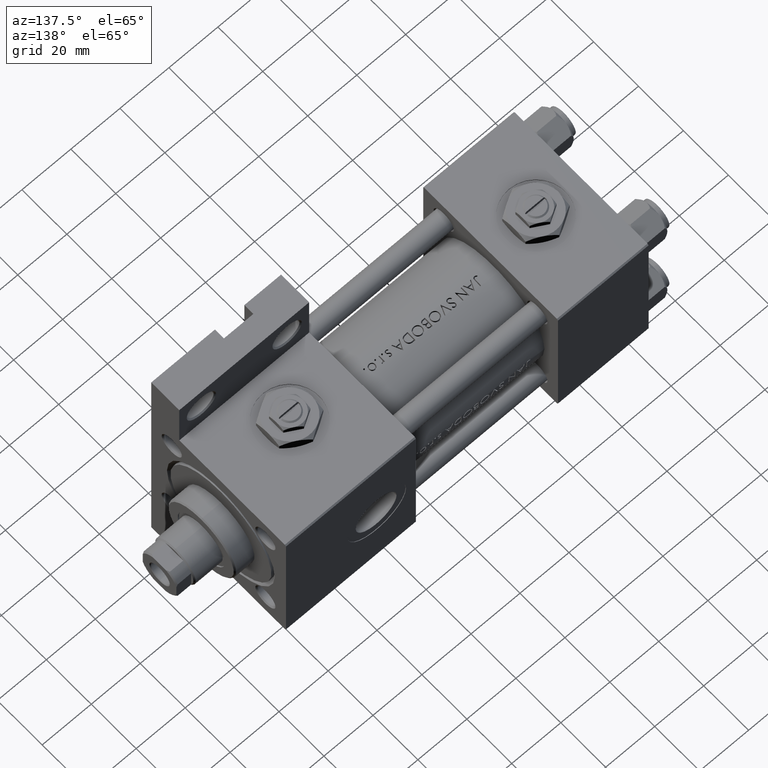
[diagram: clean part render]
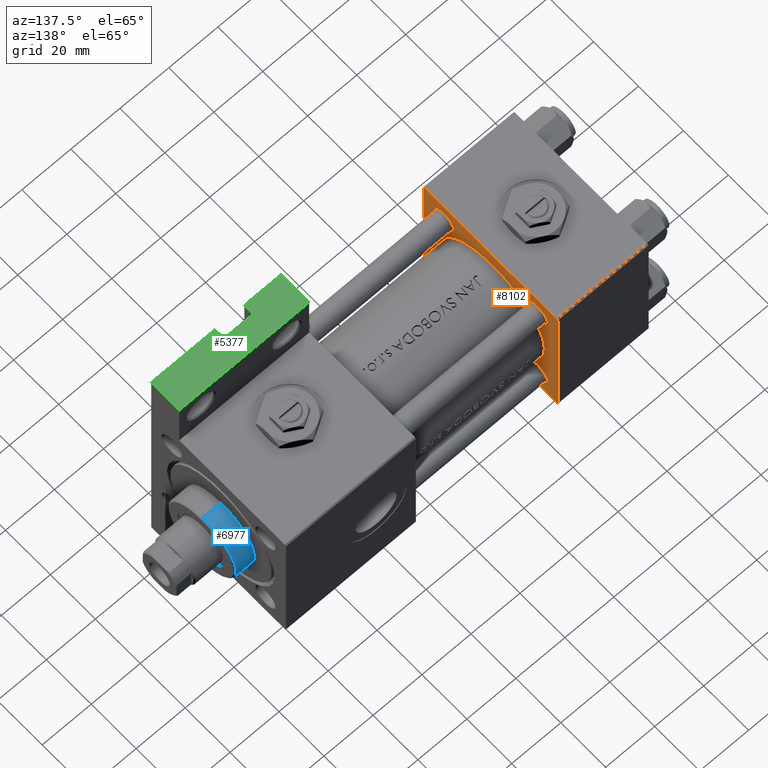
[diagram: same view with three faces highlighted in distinct colors, each labeled with its STEP entity id]
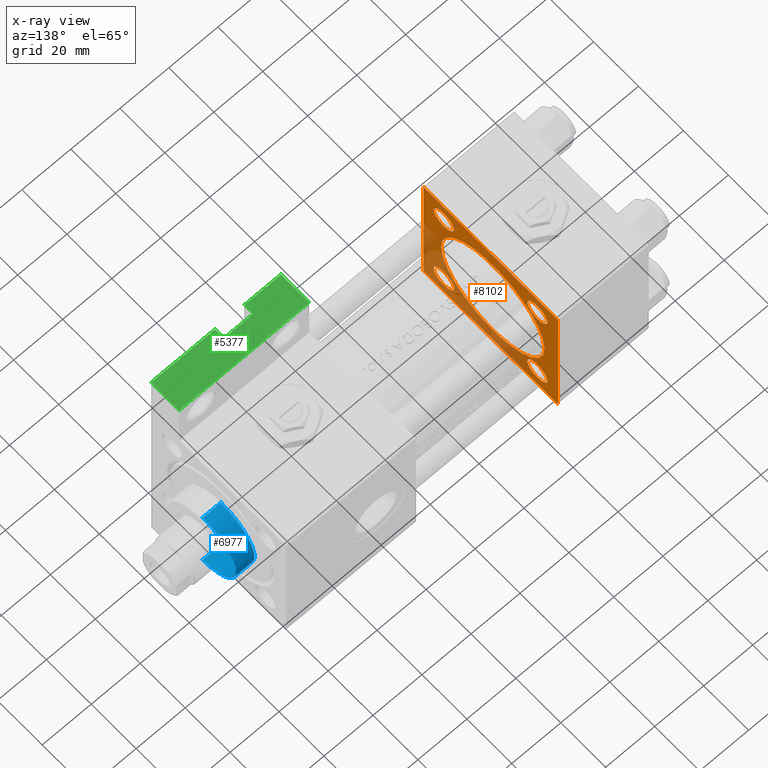
[diagram: x-ray of the same camera — body ghosted, the three highlighted faces saturated]
A machine part, auxiliary view with three faces highlighted in distinct colors.
The next image is the same camera in x-ray (body ghosted, the three faces saturated) — at least one of them is partly hidden behind the body in this view.
Their STEP definitions:

[orange] entity #8102 — the highlighted planar face has unit normal (-1, 0, -0).
#1 = ORIENTED_EDGE ( 'NONE', *, *, #6083, .F. ) ;
#52 = ORIENTED_EDGE ( 'NONE', *, *, #32908, .T. ) ;
#454 = FACE_BOUND ( 'NONE', #29024, .T. ) ;
#835 = LINE ( 'NONE', #16457, #50430 ) ;
#2034 = DIRECTION ( 'NONE',  ( 0.000000000000000000, 0.000000000000000000, 1.000000000000000000 ) ) ;
#2224 = EDGE_CURVE ( 'NONE', #46871, #26249, #44902, .T. ) ;
#2360 = CARTESIAN_POINT ( 'NONE',  ( 37.00000000000000000, 29.99999999999999289, -29.50000000000000000 ) ) ;
#3117 = LINE ( 'NONE', #2360, #45963 ) ;
#3244 = CARTESIAN_POINT ( 'NONE',  ( 37.00000000000000000, 20.84999999999999787, -20.85000000000000142 ) ) ;
#3251 = DIRECTION ( 'NONE',  ( 0.000000000000000000, 0.000000000000000000, -1.000000000000000000 ) ) ;
#3546 = LINE ( 'NONE', #26640, #13940 ) ;
#3583 = LINE ( 'NONE', #26169, #19038 ) ;
#3779 = VERTEX_POINT ( 'NONE', #3946 ) ;
#3946 = CARTESIAN_POINT ( 'NONE',  ( 37.00000000000000000, 29.49999999999997868, -30.00000000000000000 ) ) ;
#4311 = DIRECTION ( 'NONE',  ( -1.000000000000000000, 0.000000000000000000, -0.000000000000000000 ) ) ;
#4391 = AXIS2_PLACEMENT_3D ( 'NONE', #44668, #9231, #16155 ) ;
#4850 = VERTEX_POINT ( 'NONE', #36782 ) ;
#6083 = EDGE_CURVE ( 'NONE', #48280, #39287, #22076, .T. ) ;
#6138 = ORIENTED_EDGE ( 'NONE', *, *, #9735, .T. ) ;
#6872 = EDGE_CURVE ( 'NONE', #39287, #48280, #43449, .T. ) ;
#7071 = CARTESIAN_POINT ( 'NONE',  ( 37.00000000000000000, -20.84999999999999076, -20.85000000000000497 ) ) ;
#7085 = CARTESIAN_POINT ( 'NONE',  ( 37.00000000000000000, -30.00000000000000000, 29.49999999999999289 ) ) ;
#7421 = CARTESIAN_POINT ( 'NONE',  ( 37.00000000000000000, -20.84999999999999076, -25.34999999999999432 ) ) ;
#7938 = ORIENTED_EDGE ( 'NONE', *, *, #36177, .T. ) ;
#8102 = ADVANCED_FACE ( 'NONE', ( #454, #31479, #27871, #44336, #47662, #9155 ), #12473, .F. ) ;
#8237 = ORIENTED_EDGE ( 'NONE', *, *, #29747, .T. ) ;
#8316 = VERTEX_POINT ( 'NONE', #7085 ) ;
#8364 = VERTEX_POINT ( 'NONE', #47872 ) ;
#8413 = EDGE_CURVE ( 'NONE', #33873, #14173, #14643, .T. ) ;
#8478 = EDGE_CURVE ( 'NONE', #3779, #40508, #3117, .T. ) ;
#8730 = CARTESIAN_POINT ( 'NONE',  ( 37.00000000000000000, 20.84999999999999787, -20.85000000000000142 ) ) ;
#8745 = EDGE_CURVE ( 'NONE', #17072, #13850, #3546, .T. ) ;
#9155 = FACE_OUTER_BOUND ( 'NONE', #40063, .T. ) ;
#9231 = DIRECTION ( 'NONE',  ( -1.000000000000000000, 0.000000000000000000, -0.000000000000000000 ) ) ;
#9564 = CARTESIAN_POINT ( 'NONE',  ( 37.00000000000000000, -29.49999999999998579, 29.99999999999999289 ) ) ;
#9735 = EDGE_CURVE ( 'NONE', #4850, #8364, #20526, .T. ) ;
#10169 = DIRECTION ( 'NONE',  ( 0.000000000000000000, 0.000000000000000000, 1.000000000000000000 ) ) ;
#10435 = EDGE_LOOP ( 'NONE', ( #21502, #1 ) ) ;
#10539 = CARTESIAN_POINT ( 'NONE',  ( 37.00000000000000000, -29.50000000000001066, -30.00000000000000711 ) ) ;
#10965 = ORIENTED_EDGE ( 'NONE', *, *, #38638, .T. ) ;
#11073 = EDGE_CURVE ( 'NONE', #32852, #26844, #28823, .T. ) ;
#12041 = EDGE_CURVE ( 'NONE', #13850, #35824, #3583, .T. ) ;
#12473 = PLANE ( 'NONE',  #22145 ) ;
#12727 = CARTESIAN_POINT ( 'NONE',  ( 37.00000000000000000, 0.000000000000000000, 0.000000000000000000 ) ) ;
#13356 = AXIS2_PLACEMENT_3D ( 'NONE', #8730, #48794, #40306 ) ;
#13850 = VERTEX_POINT ( 'NONE', #49885 ) ;
#13907 = ORIENTED_EDGE ( 'NONE', *, *, #40550, .F. ) ;
#13940 = VECTOR ( 'NONE', #35090, 1000.000000000000114 ) ;
#14173 = VERTEX_POINT ( 'NONE', #30289 ) ;
#14222 = DIRECTION ( 'NONE',  ( -1.000000000000000000, 0.000000000000000000, -0.000000000000000000 ) ) ;
#14643 = LINE ( 'NONE', #10539, #48415 ) ;
#15423 = ORIENTED_EDGE ( 'NONE', *, *, #2224, .T. ) ;
#15988 = CARTESIAN_POINT ( 'NONE',  ( 37.00000000000000000, -20.84999999999999076, -16.35000000000001208 ) ) ;
#16155 = DIRECTION ( 'NONE',  ( 0.000000000000000000, 0.000000000000000000, 1.000000000000000000 ) ) ;
#16355 = AXIS2_PLACEMENT_3D ( 'NONE', #47214, #30783, #38999 ) ;
#16457 = CARTESIAN_POINT ( 'NONE',  ( 37.00000000000000000, 29.99999999999999289, 30.00000000000000000 ) ) ;
#17045 = DIRECTION ( 'NONE',  ( 0.000000000000000000, 0.7071067811865474617, -0.7071067811865474617 ) ) ;
#17072 = VERTEX_POINT ( 'NONE', #47871 ) ;
#17361 = CIRCLE ( 'NONE', #21461, 4.499999999999990230 ) ;
#18162 = DIRECTION ( 'NONE',  ( 1.000000000000000000, -0.000000000000000000, 0.000000000000000000 ) ) ;
#18209 = ORIENTED_EDGE ( 'NONE', *, *, #11073, .T. ) ;
#18391 = ORIENTED_EDGE ( 'NONE', *, *, #38756, .F. ) ;
#18886 = EDGE_CURVE ( 'NONE', #35712, #34332, #26515, .T. ) ;
#18921 = AXIS2_PLACEMENT_3D ( 'NONE', #3244, #49462, #10169 ) ;
#19038 = VECTOR ( 'NONE', #27168, 1000.000000000000000 ) ;
#19755 = EDGE_LOOP ( 'NONE', ( #18209, #8237 ) ) ;
#20455 = AXIS2_PLACEMENT_3D ( 'NONE', #25114, #18162, #2034 ) ;
#20526 = CIRCLE ( 'NONE', #18921, 4.499999999999990230 ) ;
#20778 = CARTESIAN_POINT ( 'NONE',  ( 37.00000000000000000, -1.224646799147354686E-16, 24.00000000000000000 ) ) ;
#21461 = AXIS2_PLACEMENT_3D ( 'NONE', #50769, #39713, #35337 ) ;
#21502 = ORIENTED_EDGE ( 'NONE', *, *, #6872, .F. ) ;
#22076 = CIRCLE ( 'NONE', #16355, 23.00000000000000000 ) ;
#22145 = AXIS2_PLACEMENT_3D ( 'NONE', #12727, #24808, #47160 ) ;
#22484 = CARTESIAN_POINT ( 'NONE',  ( 37.00000000000000000, 20.84999999999999787, 16.35000000000001208 ) ) ;
#23127 = EDGE_CURVE ( 'NONE', #35824, #8316, #41197, .T. ) ;
#23230 = EDGE_CURVE ( 'NONE', #26249, #46871, #23698, .T. ) ;
#23698 = CIRCLE ( 'NONE', #43355, 4.499999999999990230 ) ;
#24050 = DIRECTION ( 'NONE',  ( -0.000000000000000000, -0.7071067811865474617, -0.7071067811865474617 ) ) ;
#24259 = EDGE_LOOP ( 'NONE', ( #7938, #6138 ) ) ;
#24615 = ORIENTED_EDGE ( 'NONE', *, *, #23127, .T. ) ;
#24709 = CARTESIAN_POINT ( 'NONE',  ( 37.00000000000000000, 2.694222958124176415E-15, -22.00000000000000000 ) ) ;
#24808 = DIRECTION ( 'NONE',  ( -1.000000000000000000, 0.000000000000000000, -0.000000000000000000 ) ) ;
#25114 = CARTESIAN_POINT ( 'NONE',  ( 37.00000000000000000, -1.224646799147354686E-16, 1.000000000000000888 ) ) ;
#25514 = DIRECTION ( 'NONE',  ( 0.000000000000000000, -1.000000000000000000, -1.156482317317871725E-16 ) ) ;
#25621 = CARTESIAN_POINT ( 'NONE',  ( 37.00000000000000000, 29.99999999999999289, -29.50000000000000000 ) ) ;
#25677 = AXIS2_PLACEMENT_3D ( 'NONE', #7071, #29912, #34014 ) ;
#25800 = EDGE_LOOP ( 'NONE', ( #15423, #47014 ) ) ;
#26169 = CARTESIAN_POINT ( 'NONE',  ( 37.00000000000000000, 29.99999999999999289, 30.00000000000000000 ) ) ;
#26249 = VERTEX_POINT ( 'NONE', #34808 ) ;
#26364 = AXIS2_PLACEMENT_3D ( 'NONE', #34169, #29562, #49853 ) ;
#26515 = CIRCLE ( 'NONE', #4391, 4.499999999999990230 ) ;
#26640 = CARTESIAN_POINT ( 'NONE',  ( 37.00000000000000000, 29.49999999999999289, 30.00000000000000000 ) ) ;
#26784 = CARTESIAN_POINT ( 'NONE',  ( 37.00000000000000000, 20.84999999999999787, 20.85000000000000142 ) ) ;
#26844 = VERTEX_POINT ( 'NONE', #41346 ) ;
#27168 = DIRECTION ( 'NONE',  ( 0.000000000000000000, -1.000000000000000000, -1.156482317317871725E-16 ) ) ;
#27871 = FACE_BOUND ( 'NONE', #19755, .T. ) ;
#28498 = ORIENTED_EDGE ( 'NONE', *, *, #8745, .T. ) ;
#28703 = ORIENTED_EDGE ( 'NONE', *, *, #18886, .T. ) ;
#28823 = CIRCLE ( 'NONE', #26364, 4.499999999999990230 ) ;
#29024 = EDGE_LOOP ( 'NONE', ( #52, #28703 ) ) ;
#29562 = DIRECTION ( 'NONE',  ( -1.000000000000000000, 0.000000000000000000, -0.000000000000000000 ) ) ;
#29652 = CARTESIAN_POINT ( 'NONE',  ( 37.00000000000000000, -20.84999999999999076, 16.35000000000001208 ) ) ;
#29747 = EDGE_CURVE ( 'NONE', #26844, #32852, #17361, .T. ) ;
#29912 = DIRECTION ( 'NONE',  ( -1.000000000000000000, 0.000000000000000000, -0.000000000000000000 ) ) ;
#30289 = CARTESIAN_POINT ( 'NONE',  ( 37.00000000000000000, -29.50000000000000000, -30.00000000000000711 ) ) ;
#30783 = DIRECTION ( 'NONE',  ( 1.000000000000000000, -0.000000000000000000, 0.000000000000000000 ) ) ;
#31479 = FACE_BOUND ( 'NONE', #24259, .T. ) ;
#31501 = CARTESIAN_POINT ( 'NONE',  ( 37.00000000000000000, 20.84999999999999787, 20.85000000000000142 ) ) ;
#32852 = VERTEX_POINT ( 'NONE', #29652 ) ;
#32908 = EDGE_CURVE ( 'NONE', #34332, #35712, #33047, .T. ) ;
#33047 = CIRCLE ( 'NONE', #25677, 4.499999999999990230 ) ;
#33873 = VERTEX_POINT ( 'NONE', #45849 ) ;
#34014 = DIRECTION ( 'NONE',  ( 0.000000000000000000, 0.000000000000000000, 1.000000000000000000 ) ) ;
#34169 = CARTESIAN_POINT ( 'NONE',  ( 37.00000000000000000, -20.84999999999999076, 20.85000000000000497 ) ) ;
#34182 = ORIENTED_EDGE ( 'NONE', *, *, #8413, .T. ) ;
#34332 = VERTEX_POINT ( 'NONE', #7421 ) ;
#34724 = VECTOR ( 'NONE', #3251, 1000.000000000000000 ) ;
#34808 = CARTESIAN_POINT ( 'NONE',  ( 37.00000000000000000, 20.84999999999999787, 25.34999999999999076 ) ) ;
#35090 = DIRECTION ( 'NONE',  ( 0.000000000000000000, -0.7071067811865474617, 0.7071067811865474617 ) ) ;
#35103 = DIRECTION ( 'NONE',  ( 0.000000000000000000, 0.000000000000000000, 1.000000000000000000 ) ) ;
#35337 = DIRECTION ( 'NONE',  ( 0.000000000000000000, 0.000000000000000000, 1.000000000000000000 ) ) ;
#35571 = VECTOR ( 'NONE', #25514, 1000.000000000000000 ) ;
#35712 = VERTEX_POINT ( 'NONE', #15988 ) ;
#35824 = VERTEX_POINT ( 'NONE', #9564 ) ;
#36177 = EDGE_CURVE ( 'NONE', #8364, #4850, #41235, .T. ) ;
#36782 = CARTESIAN_POINT ( 'NONE',  ( 37.00000000000000000, 20.84999999999999787, -16.35000000000001208 ) ) ;
#38014 = DIRECTION ( 'NONE',  ( -0.000000000000000000, 0.7071067811865574537, 0.7071067811865376918 ) ) ;
#38347 = DIRECTION ( 'NONE',  ( 0.000000000000000000, 0.000000000000000000, 1.000000000000000000 ) ) ;
#38638 = EDGE_CURVE ( 'NONE', #8316, #33873, #42511, .T. ) ;
#38756 = EDGE_CURVE ( 'NONE', #3779, #14173, #47619, .T. ) ;
#38999 = DIRECTION ( 'NONE',  ( 0.000000000000000000, 0.000000000000000000, 1.000000000000000000 ) ) ;
#39287 = VERTEX_POINT ( 'NONE', #20778 ) ;
#39713 = DIRECTION ( 'NONE',  ( -1.000000000000000000, 0.000000000000000000, -0.000000000000000000 ) ) ;
#40063 = EDGE_LOOP ( 'NONE', ( #18391, #47902, #13907, #28498, #50762, #24615, #10965, #34182 ) ) ;
#40306 = DIRECTION ( 'NONE',  ( 0.000000000000000000, 0.000000000000000000, 1.000000000000000000 ) ) ;
#40508 = VERTEX_POINT ( 'NONE', #25621 ) ;
#40550 = EDGE_CURVE ( 'NONE', #17072, #40508, #835, .T. ) ;
#41197 = LINE ( 'NONE', #49156, #50760 ) ;
#41235 = CIRCLE ( 'NONE', #13356, 4.499999999999990230 ) ;
#41346 = CARTESIAN_POINT ( 'NONE',  ( 37.00000000000000000, -20.84999999999999076, 25.34999999999999432 ) ) ;
#42511 = LINE ( 'NONE', #45360, #34724 ) ;
#43355 = AXIS2_PLACEMENT_3D ( 'NONE', #26784, #14222, #38347 ) ;
#43449 = CIRCLE ( 'NONE', #20455, 23.00000000000000000 ) ;
#44336 = FACE_BOUND ( 'NONE', #25800, .T. ) ;
#44550 = CARTESIAN_POINT ( 'NONE',  ( 37.00000000000000000, 29.99999999999999289, -30.00000000000000000 ) ) ;
#44668 = CARTESIAN_POINT ( 'NONE',  ( 37.00000000000000000, -20.84999999999999076, -20.85000000000000497 ) ) ;
#44902 = CIRCLE ( 'NONE', #45748, 4.499999999999990230 ) ;
#45360 = CARTESIAN_POINT ( 'NONE',  ( 37.00000000000000000, -30.00000000000000000, 29.99999999999999289 ) ) ;
#45748 = AXIS2_PLACEMENT_3D ( 'NONE', #31501, #4311, #35103 ) ;
#45849 = CARTESIAN_POINT ( 'NONE',  ( 37.00000000000000000, -30.00000000000000000, -29.50000000000001776 ) ) ;
#45963 = VECTOR ( 'NONE', #38014, 999.9999999999998863 ) ;
#46871 = VERTEX_POINT ( 'NONE', #22484 ) ;
#47014 = ORIENTED_EDGE ( 'NONE', *, *, #23230, .T. ) ;
#47160 = DIRECTION ( 'NONE',  ( -0.000000000000000000, 0.000000000000000000, 1.000000000000000000 ) ) ;
#47214 = CARTESIAN_POINT ( 'NONE',  ( 37.00000000000000000, -1.224646799147354686E-16, 1.000000000000000888 ) ) ;
#47293 = DIRECTION ( 'NONE',  ( 0.000000000000000000, 0.000000000000000000, -1.000000000000000000 ) ) ;
#47619 = LINE ( 'NONE', #44550, #35571 ) ;
#47662 = FACE_BOUND ( 'NONE', #10435, .T. ) ;
#47871 = CARTESIAN_POINT ( 'NONE',  ( 37.00000000000000000, 29.99999999999999289, 29.50000000000000000 ) ) ;
#47872 = CARTESIAN_POINT ( 'NONE',  ( 37.00000000000000000, 20.84999999999999787, -25.34999999999999076 ) ) ;
#47902 = ORIENTED_EDGE ( 'NONE', *, *, #8478, .T. ) ;
#48280 = VERTEX_POINT ( 'NONE', #24709 ) ;
#48415 = VECTOR ( 'NONE', #17045, 1000.000000000000114 ) ;
#48794 = DIRECTION ( 'NONE',  ( -1.000000000000000000, 0.000000000000000000, -0.000000000000000000 ) ) ;
#49156 = CARTESIAN_POINT ( 'NONE',  ( 37.00000000000000000, -30.00000000000000000, 29.49999999999999289 ) ) ;
#49462 = DIRECTION ( 'NONE',  ( -1.000000000000000000, 0.000000000000000000, -0.000000000000000000 ) ) ;
#49853 = DIRECTION ( 'NONE',  ( 0.000000000000000000, 0.000000000000000000, 1.000000000000000000 ) ) ;
#49885 = CARTESIAN_POINT ( 'NONE',  ( 37.00000000000000000, 29.49999999999999289, 30.00000000000000000 ) ) ;
#50430 = VECTOR ( 'NONE', #47293, 1000.000000000000000 ) ;
#50760 = VECTOR ( 'NONE', #24050, 1000.000000000000114 ) ;
#50762 = ORIENTED_EDGE ( 'NONE', *, *, #12041, .T. ) ;
#50769 = CARTESIAN_POINT ( 'NONE',  ( 37.00000000000000000, -20.84999999999999076, 20.85000000000000497 ) ) ;

[blue] entity #6977 — the highlighted cylindrical surface (partial cylindrical patch) has radius 15 mm, axis along (-1, 0, 0).
#534 = EDGE_CURVE ( 'NONE', #37278, #1949, #2846, .T. ) ;
#891 = CARTESIAN_POINT ( 'NONE',  ( 0.000000000000000000, 0.000000000000000000, 36.69999999999999574 ) ) ;
#1624 = ORIENTED_EDGE ( 'NONE', *, *, #40869, .F. ) ;
#1949 = VERTEX_POINT ( 'NONE', #3873 ) ;
#2484 = DIRECTION ( 'NONE',  ( -0.000000000000000000, -0.000000000000000000, -1.000000000000000000 ) ) ;
#2846 = LINE ( 'NONE', #10770, #50618 ) ;
#3639 = CARTESIAN_POINT ( 'NONE',  ( 0.000000000000000000, 0.000000000000000000, 28.69999999999999929 ) ) ;
#3873 = CARTESIAN_POINT ( 'NONE',  ( -15.00000000000000000, 0.000000000000000000, 28.69999999999999929 ) ) ;
#4100 = EDGE_CURVE ( 'NONE', #1949, #12828, #41709, .T. ) ;
#6977 = ADVANCED_FACE ( 'NONE', ( #27810 ), #28074, .T. ) ;
#7260 = AXIS2_PLACEMENT_3D ( 'NONE', #3639, #15669, #38542 ) ;
#10770 = CARTESIAN_POINT ( 'NONE',  ( -15.00000000000000000, 0.000000000000000000, 36.69999999999999574 ) ) ;
#12828 = VERTEX_POINT ( 'NONE', #40903 ) ;
#14738 = EDGE_CURVE ( 'NONE', #36202, #37278, #41955, .T. ) ;
#14871 = DIRECTION ( 'NONE',  ( 1.000000000000000000, 0.000000000000000000, 0.000000000000000000 ) ) ;
#15613 = ORIENTED_EDGE ( 'NONE', *, *, #14738, .T. ) ;
#15669 = DIRECTION ( 'NONE',  ( 0.000000000000000000, 0.000000000000000000, 1.000000000000000000 ) ) ;
#16394 = AXIS2_PLACEMENT_3D ( 'NONE', #891, #16516, #24482 ) ;
#16516 = DIRECTION ( 'NONE',  ( -0.000000000000000000, -0.000000000000000000, -1.000000000000000000 ) ) ;
#18149 = AXIS2_PLACEMENT_3D ( 'NONE', #19466, #35133, #14871 ) ;
#18422 = VECTOR ( 'NONE', #2484, 1000.000000000000000 ) ;
#19466 = CARTESIAN_POINT ( 'NONE',  ( 0.000000000000000000, 0.000000000000000000, 36.20000000000000284 ) ) ;
#24482 = DIRECTION ( 'NONE',  ( -1.000000000000000000, 0.000000000000000000, 0.000000000000000000 ) ) ;
#26321 = LINE ( 'NONE', #37633, #18422 ) ;
#26326 = ORIENTED_EDGE ( 'NONE', *, *, #4100, .T. ) ;
#27810 = FACE_OUTER_BOUND ( 'NONE', #47969, .T. ) ;
#28074 = CYLINDRICAL_SURFACE ( 'NONE', #16394, 15.00000000000000000 ) ;
#29258 = CARTESIAN_POINT ( 'NONE',  ( 15.00000000000000000, 1.836970198721029589E-15, 36.20000000000000284 ) ) ;
#33628 = DIRECTION ( 'NONE',  ( -0.000000000000000000, -0.000000000000000000, -1.000000000000000000 ) ) ;
#35133 = DIRECTION ( 'NONE',  ( 0.000000000000000000, 0.000000000000000000, -1.000000000000000000 ) ) ;
#36202 = VERTEX_POINT ( 'NONE', #29258 ) ;
#37278 = VERTEX_POINT ( 'NONE', #37438 ) ;
#37438 = CARTESIAN_POINT ( 'NONE',  ( -15.00000000000000000, 0.000000000000000000, 36.20000000000000284 ) ) ;
#37633 = CARTESIAN_POINT ( 'NONE',  ( 15.00000000000000000, 1.836970198721029589E-15, 36.69999999999999574 ) ) ;
#38363 = ORIENTED_EDGE ( 'NONE', *, *, #534, .T. ) ;
#38542 = DIRECTION ( 'NONE',  ( 1.000000000000000000, 0.000000000000000000, 0.000000000000000000 ) ) ;
#40869 = EDGE_CURVE ( 'NONE', #36202, #12828, #26321, .T. ) ;
#40903 = CARTESIAN_POINT ( 'NONE',  ( 15.00000000000000000, 1.836970198721029589E-15, 28.69999999999999929 ) ) ;
#41709 = CIRCLE ( 'NONE', #7260, 15.00000000000000000 ) ;
#41955 = CIRCLE ( 'NONE', #18149, 15.00000000000000000 ) ;
#47969 = EDGE_LOOP ( 'NONE', ( #1624, #15613, #38363, #26326 ) ) ;
#50618 = VECTOR ( 'NONE', #33628, 1000.000000000000000 ) ;

[green] entity #5377 — the highlighted planar face has unit normal (0, 0, 1).
#753 = VERTEX_POINT ( 'NONE', #48637 ) ;
#779 = AXIS2_PLACEMENT_3D ( 'NONE', #39489, #15612, #11023 ) ;
#824 = VECTOR ( 'NONE', #21428, 1000.000000000000000 ) ;
#1862 = LINE ( 'NONE', #13388, #42037 ) ;
#2587 = LINE ( 'NONE', #26171, #21229 ) ;
#4313 = LINE ( 'NONE', #31502, #49805 ) ;
#4397 = CARTESIAN_POINT ( 'NONE',  ( 121.9999999999999858, -51.50000000000000711, -25.99999999999999645 ) ) ;
#4512 = ORIENTED_EDGE ( 'NONE', *, *, #50546, .T. ) ;
#5301 = EDGE_CURVE ( 'NONE', #9258, #38746, #2587, .T. ) ;
#5377 = ADVANCED_FACE ( 'NONE', ( #15371 ), #23317, .T. ) ;
#6516 = LINE ( 'NONE', #45796, #14318 ) ;
#6636 = CARTESIAN_POINT ( 'NONE',  ( 148.0000000000000000, -51.50000000000000711, -17.49999999999999645 ) ) ;
#9258 = VERTEX_POINT ( 'NONE', #37818 ) ;
#9635 = CARTESIAN_POINT ( 'NONE',  ( 109.9999999999999858, -51.49999999999999289, -25.99999999999999645 ) ) ;
#10005 = CARTESIAN_POINT ( 'NONE',  ( 121.9999999999999858, -51.49999999999999289, -29.99999999999999645 ) ) ;
#11023 = DIRECTION ( 'NONE',  ( 0.000000000000000000, -0.000000000000000000, -1.000000000000000000 ) ) ;
#11880 = ORIENTED_EDGE ( 'NONE', *, *, #36267, .T. ) ;
#12497 = DIRECTION ( 'NONE',  ( -0.000000000000000000, -0.000000000000000000, -1.000000000000000000 ) ) ;
#13388 = CARTESIAN_POINT ( 'NONE',  ( 109.9999999999999858, -51.49999999999999289, -25.99999999999999645 ) ) ;
#14318 = VECTOR ( 'NONE', #21392, 1000.000000000000000 ) ;
#14358 = CARTESIAN_POINT ( 'NONE',  ( 94.99999999999998579, -51.50000000000000711, -17.49999999999999645 ) ) ;
#15371 = FACE_OUTER_BOUND ( 'NONE', #39233, .T. ) ;
#15612 = DIRECTION ( 'NONE',  ( 0.000000000000000000, -1.000000000000000000, 0.000000000000000000 ) ) ;
#17206 = VERTEX_POINT ( 'NONE', #49400 ) ;
#17952 = DIRECTION ( 'NONE',  ( 0.000000000000000000, 0.000000000000000000, -1.000000000000000000 ) ) ;
#18071 = EDGE_CURVE ( 'NONE', #17206, #50111, #33330, .T. ) ;
#18351 = VECTOR ( 'NONE', #45992, 1000.000000000000000 ) ;
#18957 = LINE ( 'NONE', #14358, #37955 ) ;
#21159 = VERTEX_POINT ( 'NONE', #31039 ) ;
#21229 = VECTOR ( 'NONE', #30276, 1000.000000000000000 ) ;
#21392 = DIRECTION ( 'NONE',  ( -1.000000000000000000, -0.000000000000000000, -0.000000000000000000 ) ) ;
#21428 = DIRECTION ( 'NONE',  ( -0.000000000000000000, -0.000000000000000000, -1.000000000000000000 ) ) ;
#21513 = DIRECTION ( 'NONE',  ( 0.000000000000000000, 0.000000000000000000, -1.000000000000000000 ) ) ;
#23317 = PLANE ( 'NONE',  #779 ) ;
#25316 = EDGE_CURVE ( 'NONE', #21159, #9258, #45071, .T. ) ;
#25441 = CARTESIAN_POINT ( 'NONE',  ( 94.99999999999998579, -51.50000000000000711, -29.99999999999999645 ) ) ;
#25694 = LINE ( 'NONE', #25441, #18351 ) ;
#26171 = CARTESIAN_POINT ( 'NONE',  ( 94.99999999999998579, -51.50000000000000711, -29.99999999999999645 ) ) ;
#28796 = DIRECTION ( 'NONE',  ( -1.000000000000000000, -0.000000000000000000, -0.000000000000000000 ) ) ;
#30276 = DIRECTION ( 'NONE',  ( -1.000000000000000000, -0.000000000000000000, -0.000000000000000000 ) ) ;
#31039 = CARTESIAN_POINT ( 'NONE',  ( 109.9999999999999858, -51.49999999999999289, -25.99999999999999645 ) ) ;
#31502 = CARTESIAN_POINT ( 'NONE',  ( 121.9999999999999858, -51.49999999999999289, -25.99999999999999645 ) ) ;
#31954 = CARTESIAN_POINT ( 'NONE',  ( 94.99999999999998579, -51.50000000000000711, -29.99999999999999645 ) ) ;
#33330 = LINE ( 'NONE', #6636, #41260 ) ;
#34877 = EDGE_CURVE ( 'NONE', #44893, #21159, #1862, .T. ) ;
#36267 = EDGE_CURVE ( 'NONE', #753, #38746, #18957, .T. ) ;
#37466 = ORIENTED_EDGE ( 'NONE', *, *, #18071, .F. ) ;
#37818 = CARTESIAN_POINT ( 'NONE',  ( 109.9999999999999858, -51.49999999999999289, -29.99999999999999645 ) ) ;
#37955 = VECTOR ( 'NONE', #17952, 1000.000000000000000 ) ;
#38341 = EDGE_CURVE ( 'NONE', #50111, #48261, #25694, .T. ) ;
#38746 = VERTEX_POINT ( 'NONE', #31954 ) ;
#38818 = ORIENTED_EDGE ( 'NONE', *, *, #40417, .T. ) ;
#39233 = EDGE_LOOP ( 'NONE', ( #4512, #40617, #37466, #38818, #11880, #47563, #40904, #40125 ) ) ;
#39489 = CARTESIAN_POINT ( 'NONE',  ( 94.99999999999998579, -51.50000000000000711, -17.49999999999999645 ) ) ;
#40125 = ORIENTED_EDGE ( 'NONE', *, *, #34877, .F. ) ;
#40417 = EDGE_CURVE ( 'NONE', #17206, #753, #6516, .T. ) ;
#40617 = ORIENTED_EDGE ( 'NONE', *, *, #38341, .F. ) ;
#40904 = ORIENTED_EDGE ( 'NONE', *, *, #25316, .F. ) ;
#41260 = VECTOR ( 'NONE', #21513, 1000.000000000000000 ) ;
#42037 = VECTOR ( 'NONE', #28796, 1000.000000000000000 ) ;
#44480 = CARTESIAN_POINT ( 'NONE',  ( 148.0000000000000000, -51.50000000000000711, -29.99999999999999645 ) ) ;
#44893 = VERTEX_POINT ( 'NONE', #4397 ) ;
#45071 = LINE ( 'NONE', #9635, #824 ) ;
#45796 = CARTESIAN_POINT ( 'NONE',  ( 94.99999999999998579, -51.50000000000000711, -17.49999999999999645 ) ) ;
#45992 = DIRECTION ( 'NONE',  ( -1.000000000000000000, -0.000000000000000000, -0.000000000000000000 ) ) ;
#47563 = ORIENTED_EDGE ( 'NONE', *, *, #5301, .F. ) ;
#48261 = VERTEX_POINT ( 'NONE', #10005 ) ;
#48637 = CARTESIAN_POINT ( 'NONE',  ( 94.99999999999998579, -51.50000000000000711, -17.49999999999999645 ) ) ;
#49400 = CARTESIAN_POINT ( 'NONE',  ( 148.0000000000000000, -51.50000000000000711, -17.49999999999999645 ) ) ;
#49805 = VECTOR ( 'NONE', #12497, 1000.000000000000000 ) ;
#50111 = VERTEX_POINT ( 'NONE', #44480 ) ;
#50546 = EDGE_CURVE ( 'NONE', #44893, #48261, #4313, .T. ) ;